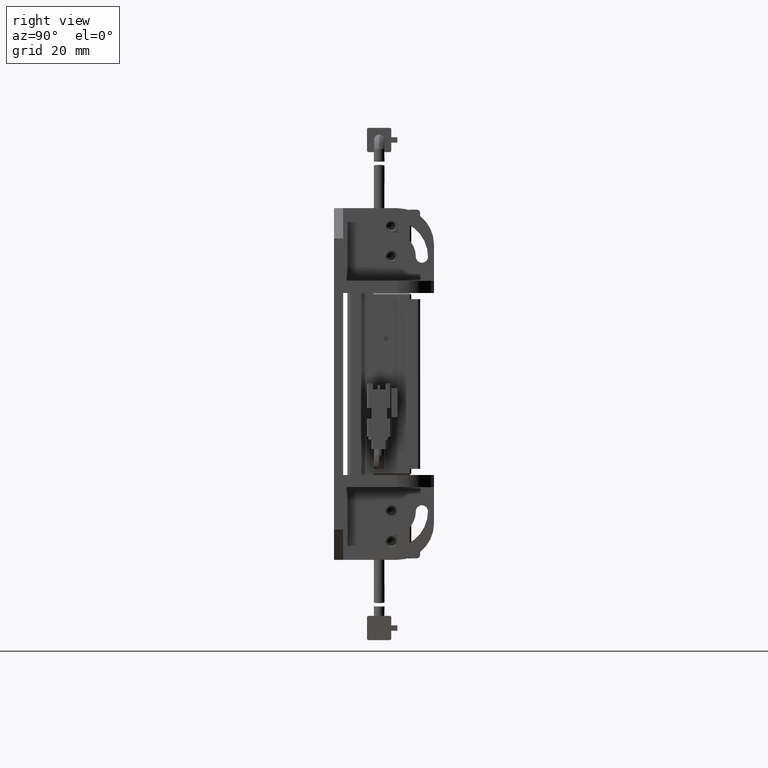
[diagram: clean part render]
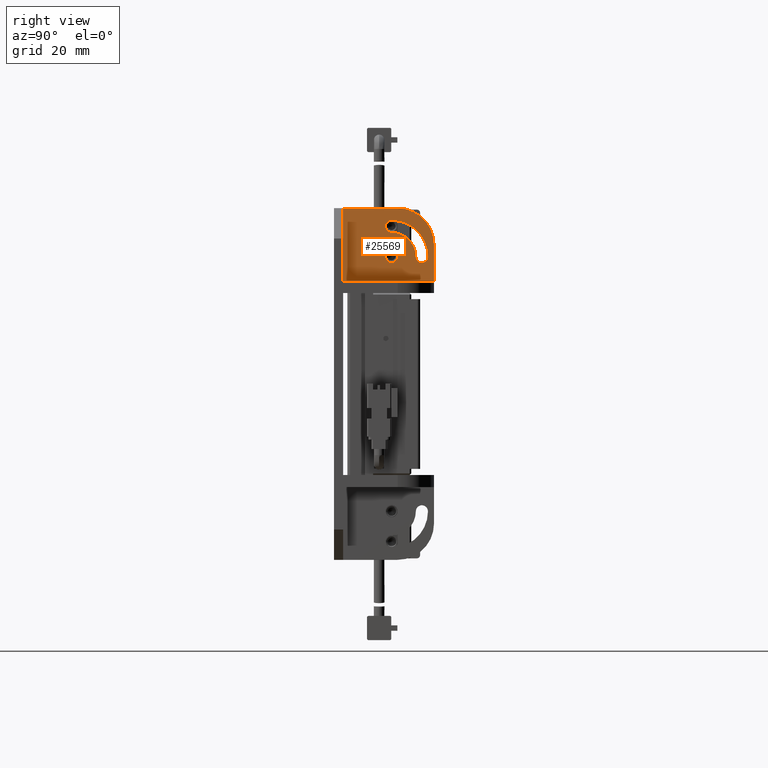
[diagram: same view with one face highlighted and labeled with its STEP entity id]
A machine part, right view. The second image highlights one B-rep face of the part: STEP entity #25569.
In plain terms, the highlighted planar face has unit normal (-1, 0, 0).
Its self-contained STEP definition (entity closure, byte-faithful):
#186 = DIRECTION ( 'NONE',  ( 1.000000000000000000, -1.010611832113635500E-016, -4.994198925862109000E-015 ) ) ;
#538 = DIRECTION ( 'NONE',  ( 0.0000000000000000000, -1.000000000000000000, 0.0000000000000000000 ) ) ;
#3262 = ORIENTED_EDGE ( 'NONE', *, *, #24962, .F. ) ;
#3774 = CIRCLE ( 'NONE', #9019, 2.000000000000003600 ) ;
#4365 = EDGE_CURVE ( 'NONE', #38492, #34290, #46059, .T. ) ;
#5626 = DIRECTION ( 'NONE',  ( -1.000000000000000000, 1.010611832113635500E-016, 5.132976803940253500E-015 ) ) ;
#5998 = EDGE_CURVE ( 'NONE', #20626, #34458, #14513, .T. ) ;
#6242 = CARTESIAN_POINT ( 'NONE',  ( 34.00000000000035500, 13.99999999999998400, 51.99999999999971600 ) ) ;
#6564 = DIRECTION ( 'NONE',  ( -1.000000000000000000, 1.010611832113635500E-016, 5.107333065599727100E-015 ) ) ;
#7944 = CARTESIAN_POINT ( 'NONE',  ( 34.00000000000025600, 29.99999999999998200, 33.99999999999970900 ) ) ;
#8431 = CARTESIAN_POINT ( 'NONE',  ( 34.00000000000025600, -1.928670976885291700E-014, 33.99999999999971600 ) ) ;
#8435 = CARTESIAN_POINT ( 'NONE',  ( 34.00000000000029100, 17.99999999999998900, 41.99999999999971600 ) ) ;
#9019 = AXIS2_PLACEMENT_3D ( 'NONE', #57965, #17338, #64768 ) ;
#9085 = AXIS2_PLACEMENT_3D ( 'NONE', #40828, #186, #47677 ) ;
#10000 = ORIENTED_EDGE ( 'NONE', *, *, #5998, .T. ) ;
#11905 = ORIENTED_EDGE ( 'NONE', *, *, #14349, .F. ) ;
#13618 = VECTOR ( 'NONE', #79590, 1000.000000000000000 ) ;
#13982 = DIRECTION ( 'NONE',  ( 1.000000000000000000, -1.010611832113635500E-016, -4.994198925862109000E-015 ) ) ;
#14349 = EDGE_CURVE ( 'NONE', #27988, #34458, #58583, .T. ) ;
#14481 = LINE ( 'NONE', #36602, #66457 ) ;
#14513 = LINE ( 'NONE', #32094, #70696 ) ;
#14708 = AXIS2_PLACEMENT_3D ( 'NONE', #81762, #41178, #538 ) ;
#15488 = ORIENTED_EDGE ( 'NONE', *, *, #51598, .F. ) ;
#15763 = LINE ( 'NONE', #39009, #13618 ) ;
#16578 = FACE_BOUND ( 'NONE', #19367, .T. ) ;
#17338 = DIRECTION ( 'NONE',  ( 1.000000000000000000, -1.010611832113635500E-016, -4.994198925862109000E-015 ) ) ;
#19058 = EDGE_LOOP ( 'NONE', ( #30793, #70334, #3262, #19263, #46681 ) ) ;
#19263 = ORIENTED_EDGE ( 'NONE', *, *, #36159, .F. ) ;
#19367 = EDGE_LOOP ( 'NONE', ( #77934, #45519 ) ) ;
#20154 = AXIS2_PLACEMENT_3D ( 'NONE', #71827, #31254, #78632 ) ;
#20531 = CARTESIAN_POINT ( 'NONE',  ( 34.00000000000029100, 15.99999999999998200, 41.99999999999970900 ) ) ;
#20626 = VERTEX_POINT ( 'NONE', #7944 ) ;
#22068 = VECTOR ( 'NONE', #76313, 1000.000000000000000 ) ;
#22080 = CIRCLE ( 'NONE', #20154, 1.999999999999998200 ) ;
#22948 = DIRECTION ( 'NONE',  ( -1.010611832113635500E-016, -1.000000000000000000, 3.780310653259597200E-030 ) ) ;
#24393 = CARTESIAN_POINT ( 'NONE',  ( 34.00000000000029800, 15.99999999999998200, 41.99999999999970900 ) ) ;
#24851 = CARTESIAN_POINT ( 'NONE',  ( 34.00000000000029800, 23.99999999999998200, 41.99999999999970900 ) ) ;
#24962 = EDGE_CURVE ( 'NONE', #40639, #65060, #22080, .T. ) ;
#25569 = ADVANCED_FACE ( 'NONE', ( #68542, #16578, #52638 ), #59619, .F. ) ;
#25926 = VERTEX_POINT ( 'NONE', #38447 ) ;
#27357 = DIRECTION ( 'NONE',  ( 0.0000000000000000000, -1.000000000000000000, 0.0000000000000000000 ) ) ;
#27988 = VERTEX_POINT ( 'NONE', #64760 ) ;
#30645 = CARTESIAN_POINT ( 'NONE',  ( 34.00000000000035500, 15.99999999999998200, 53.99999999999970900 ) ) ;
#30793 = ORIENTED_EDGE ( 'NONE', *, *, #62321, .F. ) ;
#31234 = DIRECTION ( 'NONE',  ( 0.0000000000000000000, -1.000000000000000000, 0.0000000000000000000 ) ) ;
#31254 = DIRECTION ( 'NONE',  ( 1.000000000000000000, -1.010611832113635500E-016, -4.994198925862109000E-015 ) ) ;
#32094 = CARTESIAN_POINT ( 'NONE',  ( 34.00000000000023400, 29.99999999999998200, 29.99999999999971200 ) ) ;
#34121 = EDGE_LOOP ( 'NONE', ( #11905, #84037, #35854, #15488, #10000 ) ) ;
#34290 = VERTEX_POINT ( 'NONE', #36582 ) ;
#34458 = VERTEX_POINT ( 'NONE', #51719 ) ;
#35854 = ORIENTED_EDGE ( 'NONE', *, *, #76779, .F. ) ;
#36159 = EDGE_CURVE ( 'NONE', #25926, #40639, #56580, .T. ) ;
#36582 = CARTESIAN_POINT ( 'NONE',  ( 34.00000000000029100, 13.99999999999997900, 41.99999999999970900 ) ) ;
#36602 = CARTESIAN_POINT ( 'NONE',  ( 34.00000000000037700, 29.99999999999998200, 57.99999999999970900 ) ) ;
#36654 = CARTESIAN_POINT ( 'NONE',  ( 34.00000000000034100, 15.99999999999998200, 49.99999999999970900 ) ) ;
#38447 = CARTESIAN_POINT ( 'NONE',  ( 34.00000000000029800, 27.99999999999997200, 41.99999999999970900 ) ) ;
#38492 = VERTEX_POINT ( 'NONE', #8435 ) ;
#39009 = CARTESIAN_POINT ( 'NONE',  ( 34.00000000000023400, -1.928670976885293000E-014, 29.99999999999971200 ) ) ;
#39584 = CARTESIAN_POINT ( 'NONE',  ( 34.00000000000037700, -1.928670976885283500E-014, 57.99999999999970900 ) ) ;
#40075 = LINE ( 'NONE', #8431, #22068 ) ;
#40639 = VERTEX_POINT ( 'NONE', #30645 ) ;
#40656 = AXIS2_PLACEMENT_3D ( 'NONE', #46261, #5626, #53089 ) ;
#40828 = CARTESIAN_POINT ( 'NONE',  ( 34.00000000000029100, 15.99999999999998200, 41.99999999999970900 ) ) ;
#41178 = DIRECTION ( 'NONE',  ( 1.000000000000000000, -1.010611832113635500E-016, -4.994198925862109000E-015 ) ) ;
#41677 = AXIS2_PLACEMENT_3D ( 'NONE', #54602, #13982, #61431 ) ;
#45181 = CIRCLE ( 'NONE', #14708, 1.999999999999994900 ) ;
#45519 = ORIENTED_EDGE ( 'NONE', *, *, #4365, .F. ) ;
#45904 = EDGE_CURVE ( 'NONE', #27988, #76832, #14481, .T. ) ;
#45948 = EDGE_CURVE ( 'NONE', #34290, #38492, #3774, .T. ) ;
#46059 = CIRCLE ( 'NONE', #9085, 2.000000000000003600 ) ;
#46261 = CARTESIAN_POINT ( 'NONE',  ( 34.00000000000037700, -1.928670976885283200E-014, 58.99999999999971600 ) ) ;
#46681 = ORIENTED_EDGE ( 'NONE', *, *, #54069, .F. ) ;
#47231 = CARTESIAN_POINT ( 'NONE',  ( 34.00000000000031300, 17.99999999999998900, 45.99999999999970900 ) ) ;
#47677 = DIRECTION ( 'NONE',  ( 0.0000000000000000000, -1.000000000000000000, 0.0000000000000000000 ) ) ;
#51598 = EDGE_CURVE ( 'NONE', #20626, #56713, #40075, .T. ) ;
#51719 = CARTESIAN_POINT ( 'NONE',  ( 34.00000000000031300, 29.99999999999998200, 45.99999999999970900 ) ) ;
#52638 = FACE_BOUND ( 'NONE', #19058, .T. ) ;
#53089 = DIRECTION ( 'NONE',  ( 5.132976803940253500E-015, 3.261565944056912400E-030, 1.000000000000000000 ) ) ;
#54035 = DIRECTION ( 'NONE',  ( -5.204170427930422900E-015, 0.0000000000000000000, -1.000000000000000000 ) ) ;
#54069 = EDGE_CURVE ( 'NONE', #68390, #25926, #45181, .T. ) ;
#54602 = CARTESIAN_POINT ( 'NONE',  ( 34.00000000000035500, 15.99999999999998200, 51.99999999999971600 ) ) ;
#56580 = CIRCLE ( 'NONE', #73316, 11.99999999999999300 ) ;
#56713 = VERTEX_POINT ( 'NONE', #82575 ) ;
#57965 = CARTESIAN_POINT ( 'NONE',  ( 34.00000000000029100, 15.99999999999998200, 41.99999999999970900 ) ) ;
#58583 = CIRCLE ( 'NONE', #79387, 11.99999999999999600 ) ;
#59619 = PLANE ( 'NONE',  #40656 ) ;
#61431 = DIRECTION ( 'NONE',  ( 0.0000000000000000000, -1.000000000000000000, 0.0000000000000000000 ) ) ;
#62321 = EDGE_CURVE ( 'NONE', #70328, #68390, #68266, .T. ) ;
#62532 = EDGE_CURVE ( 'NONE', #65060, #70328, #66058, .T. ) ;
#64760 = CARTESIAN_POINT ( 'NONE',  ( 34.00000000000037700, 17.99999999999998900, 57.99999999999971600 ) ) ;
#64768 = DIRECTION ( 'NONE',  ( 0.0000000000000000000, -1.000000000000000000, 0.0000000000000000000 ) ) ;
#65060 = VERTEX_POINT ( 'NONE', #6242 ) ;
#66058 = CIRCLE ( 'NONE', #41677, 1.999999999999998200 ) ;
#66457 = VECTOR ( 'NONE', #22948, 1000.000000000000000 ) ;
#67983 = DIRECTION ( 'NONE',  ( 1.000000000000000000, -1.010611832113635500E-016, -4.994198925862109000E-015 ) ) ;
#68266 = CIRCLE ( 'NONE', #76836, 7.999999999999998200 ) ;
#68390 = VERTEX_POINT ( 'NONE', #24851 ) ;
#68542 = FACE_OUTER_BOUND ( 'NONE', #34121, .T. ) ;
#70328 = VERTEX_POINT ( 'NONE', #36654 ) ;
#70334 = ORIENTED_EDGE ( 'NONE', *, *, #62532, .F. ) ;
#70696 = VECTOR ( 'NONE', #79481, 1000.000000000000000 ) ;
#71810 = DIRECTION ( 'NONE',  ( -1.000000000000000000, 1.010611832113635500E-016, 4.994198925862109000E-015 ) ) ;
#71827 = CARTESIAN_POINT ( 'NONE',  ( 34.00000000000035500, 15.99999999999998200, 51.99999999999971600 ) ) ;
#73316 = AXIS2_PLACEMENT_3D ( 'NONE', #20531, #67983, #27357 ) ;
#76313 = DIRECTION ( 'NONE',  ( -1.010611832113635500E-016, -1.000000000000000000, 3.780310653259597200E-030 ) ) ;
#76779 = EDGE_CURVE ( 'NONE', #56713, #76832, #15763, .T. ) ;
#76832 = VERTEX_POINT ( 'NONE', #39584 ) ;
#76836 = AXIS2_PLACEMENT_3D ( 'NONE', #24393, #71810, #31234 ) ;
#77934 = ORIENTED_EDGE ( 'NONE', *, *, #45948, .F. ) ;
#78632 = DIRECTION ( 'NONE',  ( 0.0000000000000000000, -1.000000000000000000, 0.0000000000000000000 ) ) ;
#79387 = AXIS2_PLACEMENT_3D ( 'NONE', #47231, #6564, #54035 ) ;
#79481 = DIRECTION ( 'NONE',  ( 4.994198925862109000E-015, 3.275591000619051700E-030, 1.000000000000000000 ) ) ;
#79590 = DIRECTION ( 'NONE',  ( 4.994198925862109000E-015, 3.275591000619051700E-030, 1.000000000000000000 ) ) ;
#81762 = CARTESIAN_POINT ( 'NONE',  ( 34.00000000000029800, 25.99999999999997900, 41.99999999999970900 ) ) ;
#82575 = CARTESIAN_POINT ( 'NONE',  ( 34.00000000000025600, -1.928670976885291700E-014, 33.99999999999970900 ) ) ;
#84037 = ORIENTED_EDGE ( 'NONE', *, *, #45904, .T. ) ;